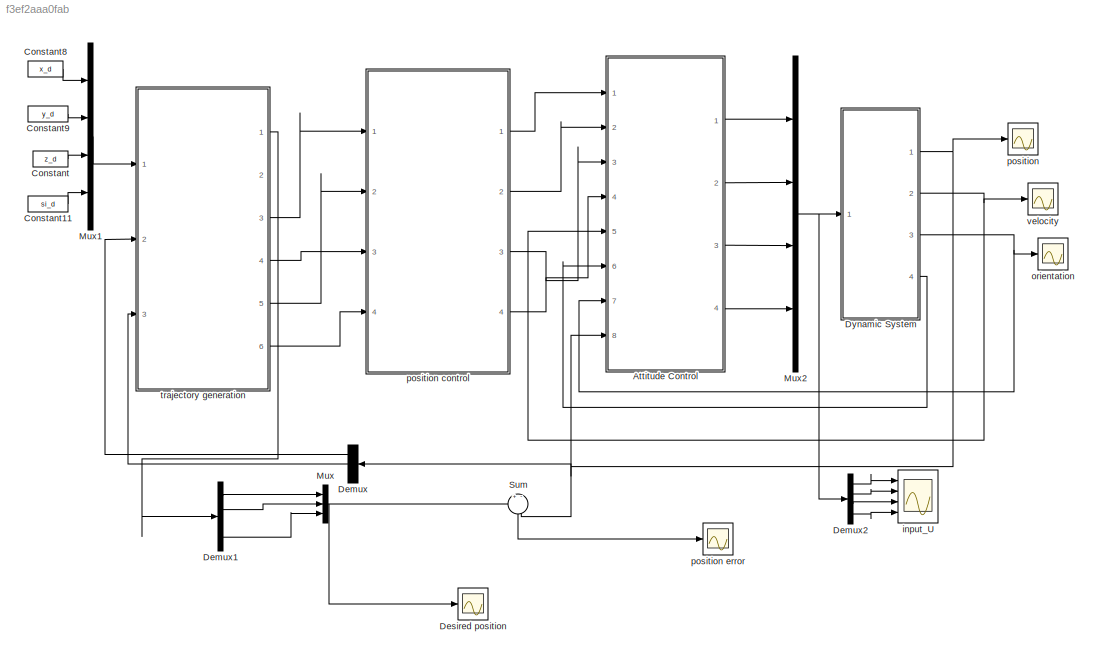
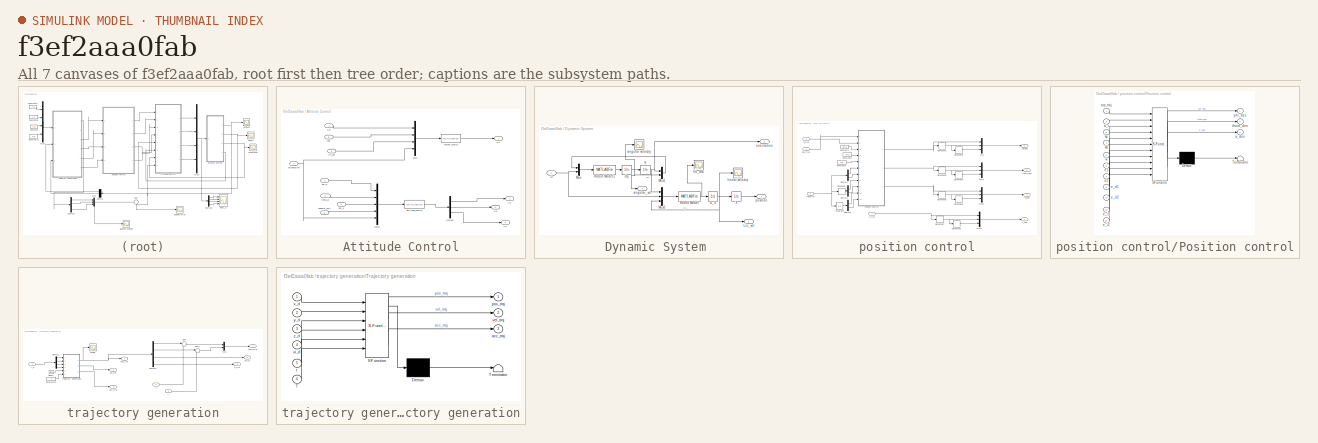
[diagram: thumbnail index - all 7 canvases of the model, root first then tree order]
MODEL slx_f3ef2aaa0fab
KIND model
CONFIG AbsTol = auto
CONFIG EnableMultiTasking = off
CONFIG FixedStep = auto
CONFIG MaxStep = auto
CONFIG MinStep = auto
CONFIG RelTol = 1e-3
CONFIG SampleTimeConstraint = Unconstrained
CONFIG SolverName = VariableStepAuto
CONFIG StartTime = 0.0
CONFIG StopTime = 50
BLOCK [SubSystem] Attitude Control
  Ports = [8, 4]
  RequestExecContextInheritance = off
BLOCK [Demux] Attitude Control/Demux
  Outputs = 3
  Ports = [1, 3]
BLOCK [Mux] Attitude Control/Mux
  DisplayOption = bar
  Ports = [4, 1]
BLOCK [Mux] Attitude Control/Mux1
  DisplayOption = bar
  Inputs = 5
  Ports = [5, 1]
BLOCK [Outport] Attitude Control/U1
  VectorParamsAs1DForOutWhenUnconnected = off
BLOCK [Outport] Attitude Control/U2
  Port = 2
  VectorParamsAs1DForOutWhenUnconnected = off
BLOCK [Outport] Attitude Control/U3
  Port = 3
  VectorParamsAs1DForOutWhenUnconnected = off
BLOCK [Outport] Attitude Control/U4
  Port = 4
  VectorParamsAs1DForOutWhenUnconnected = off
BLOCK [Inport] Attitude Control/angular_vel1
  Port = 6
BLOCK [MATLABFcn] Attitude Control/attitude_control
  MATLABFcn = attitude_ctrl_bs(u(1:3),u(4:6),u(7:9),u(10:12),u(13:15),droneparam)
  OutputDimensions = 3
  Ports = [1, 1]
BLOCK [MATLABFcn] Attitude Control/height_control
  MATLABFcn = height_input_bs(u(1:3),u(4:6),u(7:9),u(10:12),droneparam)
  OutputDimensions = 1
  Ports = [1, 1]
BLOCK [Inport] Attitude Control/lin_vel
  Port = 5
BLOCK [Inport] Attitude Control/orientation
  Port = 7
BLOCK [Inport] Attitude Control/phi_d
  Port = 2
BLOCK [Inport] Attitude Control/pos
  Port = 8
BLOCK [Inport] Attitude Control/psi_d
  Port = 4
BLOCK [Inport] Attitude Control/theta_d
  Port = 3
BLOCK [Inport] Attitude Control/z_d
BLOCK [Constant] Constant
  Value = z_d
BLOCK [Constant] Constant11
  Value = si_d
BLOCK [Constant] Constant8
  Value = x_d
BLOCK [Constant] Constant9
  Value = y_d
BLOCK [Demux] Demux
  NameLocation = top
  Outputs = 3
  Ports = [1, 3]
BLOCK [Demux] Demux1
  Ports = [1, 4]
BLOCK [Demux] Demux2
  Ports = [1, 4]
BLOCK [Scope] Desired position 
  Floating = off
  NumInputPorts = 1
  Ports = [1]
  ScopeSpecificationString = Simulink.scopes.TimeScopeBlockCfg('CurrentConfiguration', extmgr.ConfigurationSet(extmgr.Configuration('Core','General UI',true,'FigureColor',[1 1 1]),extmgr.Configuration('Core','Source UI',true),extmgr.Configuration('Sources','WiredSimulink',true,'DataLoggingVariableName','ScopeData1'),extmgr.Configuration('Visuals','Time Domain',true,'SerializedDisplays',{struct('MinYLimReal','-0.17496','MaxYLi...<+1917ch>
BLOCK [SubSystem] Dynamic System 
  Ports = [1, 4]
  RequestExecContextInheritance = off
BLOCK [Outport] Dynamic System /Lin_vel
  Port = 2
  VectorParamsAs1DForOutWhenUnconnected = off
BLOCK [Mux] Dynamic System /Mux
  DisplayOption = bar
  Inputs = 2
  Ports = [2, 1]
BLOCK [Mux] Dynamic System /Mux1
  DisplayOption = bar
  Inputs = 2
  Ports = [2, 1]
BLOCK [Mux] Dynamic System /Mux3
  DisplayOption = bar
  Inputs = 3
  Ports = [3, 1]
BLOCK [MATLABFcn] Dynamic System /Robot Model
  MATLABFcn = dronePos(u(1:3),u(4:7),u(8:10),droneparam)
  OutputDimensions = 3
  Ports = [1, 1]
BLOCK [MATLABFcn] Dynamic System /Robot Model1
  MATLABFcn = droneOrientation(u(1:3),u(4:6),u(7:10),droneparam)
  OutputDimensions = 3
  Ports = [1, 1]
BLOCK [Inport] Dynamic System /U
BLOCK [Integrator] Dynamic System /X
  InitialCondition = droneparam.X0
  NameLocation = top
  Ports = [1, 1]
BLOCK [Scope] Dynamic System /angular velocity
  Floating = off
  NumInputPorts = 1
  Ports = [1]
  ScopeSpecificationString = Simulink.scopes.TimeScopeBlockCfg('CurrentConfiguration', extmgr.ConfigurationSet(extmgr.Configuration('Core','General UI',true),extmgr.Configuration('Core','Source UI',true),extmgr.Configuration('Sources','WiredSimulink',true,'DataLoggingVariableName','ScopeData4'),extmgr.Configuration('Visuals','Time Domain',true,'SerializedDisplays',{struct('MinYLimReal','-0.96572','MaxYLimReal','0.53685','YLab...<+1402ch>
BLOCK [Outport] Dynamic System /angular_vel
  Port = 4
  VectorParamsAs1DForOutWhenUnconnected = off
BLOCK [Integrator] Dynamic System /d_X
  InitialCondition = droneparam.X0
  NameLocation = top
  Ports = [1, 1]
BLOCK [Integrator] Dynamic System /dq
  InitialCondition = droneparam.q0
  NameLocation = top
  Ports = [1, 1]
BLOCK [Scope] Dynamic System /lin_acc
  Floating = off
  NumInputPorts = 1
  Ports = [1]
  ScopeSpecificationString = Simulink.scopes.TimeScopeBlockCfg('CurrentConfiguration', extmgr.ConfigurationSet(extmgr.Configuration('Core','General UI',true,'FigureColor',[1 1 1]),extmgr.Configuration('Core','Source UI',true),extmgr.Configuration('Sources','WiredSimulink',true,'DataLoggingVariableName','ScopeData6'),extmgr.Configuration('Visuals','Time Domain',true,'SerializedDisplays',{struct('MinYLimReal','-24.18427','MaxYL...<+1882ch>
BLOCK [Scope] Dynamic System /linear velocity 
  Floating = off
  NumInputPorts = 1
  Ports = [1]
  ScopeSpecificationString = Simulink.scopes.TimeScopeBlockCfg('CurrentConfiguration', extmgr.ConfigurationSet(extmgr.Configuration('Core','General UI',true),extmgr.Configuration('Core','Source UI',true),extmgr.Configuration('Sources','WiredSimulink',true,'DataLoggingVariableName','ScopeData2'),extmgr.Configuration('Visuals','Time Domain',true,'SerializedDisplays',{struct('MinYLimReal','-0.33742','MaxYLimReal','2.92382','YLab...<+1406ch>
BLOCK [Outport] Dynamic System /orientation
  Port = 3
  VectorParamsAs1DForOutWhenUnconnected = off
BLOCK [Outport] Dynamic System /position 
  VectorParamsAs1DForOutWhenUnconnected = off
BLOCK [Integrator] Dynamic System /q
  InitialCondition = droneparam.q0
  NameLocation = top
  Ports = [1, 1]
BLOCK [Mux] Mux
  DisplayOption = bar
  Inputs = 3
  Ports = [3, 1]
BLOCK [Mux] Mux1
  DisplayOption = bar
  Ports = [4, 1]
BLOCK [Mux] Mux2
  DisplayOption = bar
  Ports = [4, 1]
BLOCK [Sum] Sum
  Inputs = +-
  NameLocation = left
  Ports = [2, 1]
BLOCK [Scope] input_U
  Floating = off
  NumInputPorts = 4
  Ports = [4]
  ScopeSpecificationString = Simulink.scopes.TimeScopeBlockCfg('CurrentConfiguration', extmgr.ConfigurationSet(extmgr.Configuration('Core','General UI',true,'FigureColor',[1 1 1]),extmgr.Configuration('Core','Source UI',true),extmgr.Configuration('Sources','WiredSimulink',true,'DataLoggingVariableName','ScopeData2'),extmgr.Configuration('Visuals','Time Domain',true,'SerializedDisplays',{struct('MinYLimReal','9.13185','MaxYLim...<+4444ch>
BLOCK [Scope] orientation
  Floating = off
  NumInputPorts = 1
  Ports = [1]
  ScopeSpecificationString = Simulink.scopes.TimeScopeBlockCfg('CurrentConfiguration', extmgr.ConfigurationSet(extmgr.Configuration('Core','General UI',true),extmgr.Configuration('Core','Source UI',true),extmgr.Configuration('Sources','WiredSimulink',true,'DataLoggingVariableName','ScopeData3'),extmgr.Configuration('Visuals','Time Domain',true,'SerializedDisplays',{struct('MinYLimReal','-0.02274','MaxYLimReal','0.02191','YLab...<+1514ch>
BLOCK [Scope] position 
  Floating = off
  NumInputPorts = 1
  Ports = [1]
  ScopeSpecificationString = Simulink.scopes.TimeScopeBlockCfg('CurrentConfiguration', extmgr.ConfigurationSet(extmgr.Configuration('Core','General UI',true,'FigureColor',[1 1 1]),extmgr.Configuration('Core','Source UI',true),extmgr.Configuration('Sources','WiredSimulink',true,'DataLoggingVariableName','ScopeData4'),extmgr.Configuration('Visuals','Time Domain',true,'SerializedDisplays',{struct('MinYLimReal','-8.13159','MaxYLi...<+1880ch>
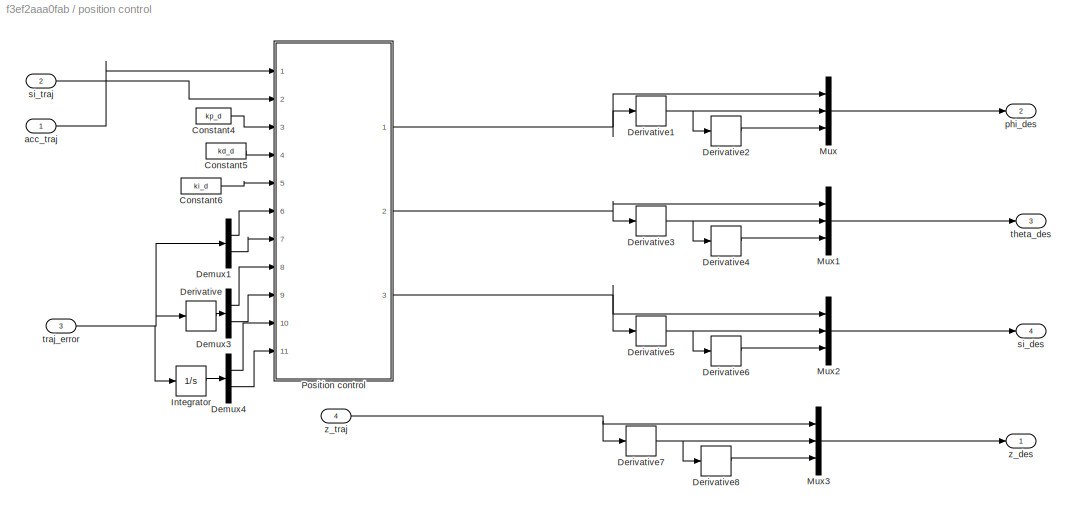
BLOCK [SubSystem] position control
  Ports = [4, 4]
  RequestExecContextInheritance = off
BLOCK [Constant] position control/Constant4
  Value = kp_d
BLOCK [Constant] position control/Constant5
  Value = kd_d
BLOCK [Constant] position control/Constant6
  Value = ki_d
BLOCK [Demux] position control/Demux1
  Outputs = 2
  Ports = [1, 2]
BLOCK [Demux] position control/Demux3
  Outputs = 2
  Ports = [1, 2]
BLOCK [Demux] position control/Demux4
  Outputs = 2
  Ports = [1, 2]
BLOCK [Derivative] position control/Derivative
BLOCK [Derivative] position control/Derivative1
BLOCK [Derivative] position control/Derivative2
BLOCK [Derivative] position control/Derivative3
BLOCK [Derivative] position control/Derivative4
BLOCK [Derivative] position control/Derivative5
BLOCK [Derivative] position control/Derivative6
BLOCK [Derivative] position control/Derivative7
BLOCK [Derivative] position control/Derivative8
BLOCK [Integrator] position control/Integrator
  Ports = [1, 1]
BLOCK [Mux] position control/Mux
  DisplayOption = bar
  Inputs = 3
  Ports = [3, 1]
BLOCK [Mux] position control/Mux1
  DisplayOption = bar
  Inputs = 3
  Ports = [3, 1]
BLOCK [Mux] position control/Mux2
  DisplayOption = bar
  Inputs = 3
  Ports = [3, 1]
BLOCK [Mux] position control/Mux3
  DisplayOption = bar
  Inputs = 3
  Ports = [3, 1]
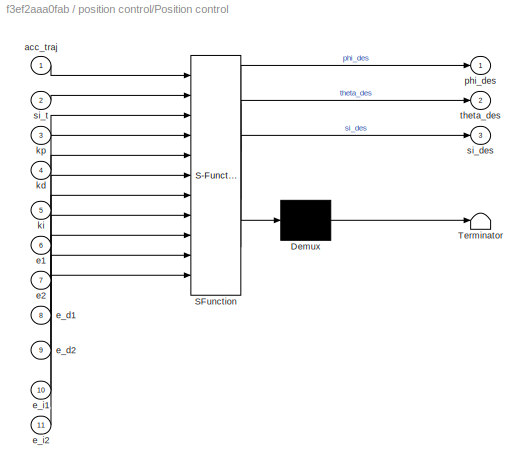
BLOCK [SubSystem] position control/Position control
  ErrorFcn = Stateflow.Translate.translate
  PermitHierarchicalResolution = ExplicitOnly
  Ports = [11, 3]
  RequestExecContextInheritance = off
  SFBlockType = MATLAB Function
  TreatAsAtomicUnit = on
BLOCK [Demux] position control/Position control/ Demux 
  Outputs = 1
  Ports = [1, 1]
BLOCK [S-Function] position control/Position control/ SFunction 
  EnableBusSupport = on
  FunctionName = sf_sfun
  PortCounts = [11 4]
  Ports = [11, 4]
  SFcnIsStateOwnerBlock = off
  SFunctionDeploymentMode = off
  Tag = Stateflow S-Function 2
BLOCK [Terminator] position control/Position control/ Terminator 
BLOCK [Inport] position control/Position control/acc_traj
BLOCK [Inport] position control/Position control/e1
  Port = 6
BLOCK [Inport] position control/Position control/e2
  Port = 7
BLOCK [Inport] position control/Position control/e_d1
  Port = 8
BLOCK [Inport] position control/Position control/e_d2
  Port = 9
BLOCK [Inport] position control/Position control/e_i1
  Port = 10
BLOCK [Inport] position control/Position control/e_i2
  Port = 11
BLOCK [Inport] position control/Position control/kd
  Port = 4
BLOCK [Inport] position control/Position control/ki
  Port = 5
BLOCK [Inport] position control/Position control/kp
  Port = 3
BLOCK [Outport] position control/Position control/phi_des
  VectorParamsAs1DForOutWhenUnconnected = off
BLOCK [Outport] position control/Position control/si_des
  Port = 3
  VectorParamsAs1DForOutWhenUnconnected = off
BLOCK [Inport] position control/Position control/si_t
  Port = 2
BLOCK [Outport] position control/Position control/theta_des
  Port = 2
  VectorParamsAs1DForOutWhenUnconnected = off
BLOCK [Inport] position control/acc_traj
BLOCK [Outport] position control/phi_des
  Port = 2
  VectorParamsAs1DForOutWhenUnconnected = off
BLOCK [Outport] position control/si_des
  Port = 4
  VectorParamsAs1DForOutWhenUnconnected = off
BLOCK [Inport] position control/si_traj
  Port = 2
BLOCK [Outport] position control/theta_des
  Port = 3
  VectorParamsAs1DForOutWhenUnconnected = off
BLOCK [Inport] position control/traj_error
  Port = 3
BLOCK [Outport] position control/z_des
  VectorParamsAs1DForOutWhenUnconnected = off
BLOCK [Inport] position control/z_traj
  Port = 4
BLOCK [Scope] position error
  Floating = off
  NumInputPorts = 1
  Ports = [1]
  ScopeSpecificationString = Simulink.scopes.TimeScopeBlockCfg('CurrentConfiguration', extmgr.ConfigurationSet(extmgr.Configuration('Core','General UI',true,'FigureColor',[1 1 1]),extmgr.Configuration('Core','Source UI',true),extmgr.Configuration('Sources','WiredSimulink',true,'DataLoggingVariableName','ScopeData5'),extmgr.Configuration('Visuals','Time Domain',true,'SerializedDisplays',{struct('MinYLimReal','-0.00314','MaxYLi...<+1915ch>
BLOCK [SubSystem] trajectory generation
  Ports = [3, 6]
  RequestExecContextInheritance = off
BLOCK [Clock] trajectory generation/Clock1
BLOCK [Constant] trajectory generation/Constant10
  Value = T
BLOCK [Demux] trajectory generation/Demux1
  Ports = [1, 4]
BLOCK [Demux] trajectory generation/Demux2
  Ports = [1, 4]
BLOCK [Mux] trajectory generation/Mux
  DisplayOption = bar
  Inputs = 2
  Ports = [2, 1]
BLOCK [Scope] trajectory generation/Scope
  Floating = off
  NumInputPorts = 1
  Ports = [1]
  ScopeSpecificationString = Simulink.scopes.TimeScopeBlockCfg('CurrentConfiguration', extmgr.ConfigurationSet(extmgr.Configuration('Core','General UI',true),extmgr.Configuration('Core','Source UI',true),extmgr.Configuration('Sources','WiredSimulink',true,'DataLoggingVariableName','ScopeData3'),extmgr.Configuration('Visuals','Time Domain',true,'SerializedDisplays',{struct('MinYLimReal','-2.5','MaxYLimReal','22.5','YLabelReal'...<+1501ch>
BLOCK [Sum] trajectory generation/Sum
  Inputs = |+-
  Ports = [2, 1]
BLOCK [Sum] trajectory generation/Sum1
  Inputs = |+-
  Ports = [2, 1]
BLOCK [SubSystem] trajectory generation/Trajectory generation
  ErrorFcn = Stateflow.Translate.translate
  PermitHierarchicalResolution = ExplicitOnly
  Ports = [6, 3]
  RequestExecContextInheritance = off
  SFBlockType = MATLAB Function
  TreatAsAtomicUnit = on
BLOCK [Demux] trajectory generation/Trajectory generation/ Demux 
  Outputs = 1
  Ports = [1, 1]
BLOCK [S-Function] trajectory generation/Trajectory generation/ SFunction 
  EnableBusSupport = on
  FunctionName = sf_sfun
  PortCounts = [6 4]
  Ports = [6, 4]
  SFcnIsStateOwnerBlock = off
  SFunctionDeploymentMode = off
  Tag = Stateflow S-Function 1
BLOCK [Terminator] trajectory generation/Trajectory generation/ Terminator 
BLOCK [Inport] trajectory generation/Trajectory generation/T
  Port = 6
BLOCK [Outport] trajectory generation/Trajectory generation/acc_traj
  Port = 3
  VectorParamsAs1DForOutWhenUnconnected = off
BLOCK [Outport] trajectory generation/Trajectory generation/pos_traj
  VectorParamsAs1DForOutWhenUnconnected = off
BLOCK [Inport] trajectory generation/Trajectory generation/si_d
  Port = 4
BLOCK [Inport] trajectory generation/Trajectory generation/t
  Port = 5
BLOCK [Outport] trajectory generation/Trajectory generation/vel_traj
  Port = 2
  VectorParamsAs1DForOutWhenUnconnected = off
BLOCK [Inport] trajectory generation/Trajectory generation/x_d
BLOCK [Inport] trajectory generation/Trajectory generation/y_d
  Port = 2
BLOCK [Inport] trajectory generation/Trajectory generation/z_d
  Port = 3
BLOCK [Outport] trajectory generation/acc_traj
  Port = 3
  VectorParamsAs1DForOutWhenUnconnected = off
BLOCK [Outport] trajectory generation/pos_error
  Port = 4
  VectorParamsAs1DForOutWhenUnconnected = off
BLOCK [Outport] trajectory generation/pos_traj
  VectorParamsAs1DForOutWhenUnconnected = off
BLOCK [Inport] trajectory generation/r_d
BLOCK [Outport] trajectory generation/si_traj
  Port = 5
  VectorParamsAs1DForOutWhenUnconnected = off
BLOCK [Outport] trajectory generation/vel_traj
  Port = 2
  VectorParamsAs1DForOutWhenUnconnected = off
BLOCK [Inport] trajectory generation/x
  Port = 2
BLOCK [Inport] trajectory generation/y
  Port = 3
BLOCK [Outport] trajectory generation/z_traj
  Port = 6
  VectorParamsAs1DForOutWhenUnconnected = off
BLOCK [Scope] velocity 
  Floating = off
  NumInputPorts = 1
  Ports = [1]
  ScopeSpecificationString = Simulink.scopes.TimeScopeBlockCfg('CurrentConfiguration', extmgr.ConfigurationSet(extmgr.Configuration('Core','General UI',true,'FigureColor',[1 1 1]),extmgr.Configuration('Core','Source UI',true),extmgr.Configuration('Sources','WiredSimulink',true,'DataLoggingVariableName','ScopeData6'),extmgr.Configuration('Visuals','Time Domain',true,'SerializedDisplays',{struct('MinYLimReal','-0.33722','MaxYLi...<+1918ch>
LINE Attitude Control/Demux:1 -> Attitude Control/U2:1
LINE Attitude Control/Demux:2 -> Attitude Control/U3:1
LINE Attitude Control/Demux:3 -> Attitude Control/U4:1
LINE Attitude Control/Mux1:1 -> Attitude Control/attitude_control:1
LINE Attitude Control/Mux:1 -> Attitude Control/height_control:1
LINE Attitude Control/angular_vel1:1 -> Attitude Control/Mux1:4
LINE Attitude Control/attitude_control:1 -> Attitude Control/Demux:1
LINE Attitude Control/height_control:1 -> Attitude Control/U1:1
LINE Attitude Control/lin_vel:1 -> Attitude Control/Mux:3
NET Attitude Control/orientation:1 -> Attitude Control/Mux1:5, Attitude Control/Mux:4
LINE Attitude Control/phi_d:1 -> Attitude Control/Mux1:1
LINE Attitude Control/pos:1 -> Attitude Control/Mux:2
LINE Attitude Control/psi_d:1 -> Attitude Control/Mux1:3
LINE Attitude Control/theta_d:1 -> Attitude Control/Mux1:2
LINE Attitude Control/z_d:1 -> Attitude Control/Mux:1
LINE Attitude Control:1 -> Mux2:1
LINE Attitude Control:2 -> Mux2:2
LINE Attitude Control:3 -> Mux2:3
LINE Attitude Control:4 -> Mux2:4
LINE Constant11:1 -> Mux1:4
LINE Constant8:1 -> Mux1:1
LINE Constant9:1 -> Mux1:2
LINE Constant:1 -> Mux1:3
LINE Demux1:1 -> Mux:1
LINE Demux1:2 -> Mux:2
LINE Demux1:4 -> Mux:3
LINE Demux2:1 -> input_U:1
LINE Demux2:2 -> input_U:2
LINE Demux2:3 -> input_U:3
LINE Demux2:4 -> input_U:4
LINE Demux:1 -> trajectory generation:2
LINE Demux:2 -> trajectory generation:3
LINE Dynamic System /Mux1:1 -> Dynamic System /Mux:1
LINE Dynamic System /Mux3:1 -> Dynamic System /Robot Model:1
LINE Dynamic System /Mux:1 -> Dynamic System /Robot Model1:1
LINE Dynamic System /Robot Model1:1 -> Dynamic System /dq:1
NET Dynamic System /Robot Model:1 -> Dynamic System /d_X:1, Dynamic System /lin_acc:1
NET Dynamic System /U:1 -> Dynamic System /Mux3:2, Dynamic System /Mux:2
LINE Dynamic System /X:1 -> Dynamic System /position :1
NET Dynamic System /d_X:1 -> Dynamic System /Lin_vel:1, Dynamic System /Mux3:3, Dynamic System /X:1, Dynamic System /linear velocity :1
NET Dynamic System /dq:1 -> Dynamic System /Mux1:2, Dynamic System /angular velocity:1, Dynamic System /angular_vel:1, Dynamic System /q:1
NET Dynamic System /q:1 -> Dynamic System /Mux1:1, Dynamic System /Mux3:1, Dynamic System /orientation:1
NET Dynamic System :1 -> Attitude Control:8, Demux:1, Sum:2, position :1
NET Dynamic System :2 -> Attitude Control:5, velocity :1
NET Dynamic System :3 -> Attitude Control:7, orientation:1
LINE Dynamic System :4 -> Attitude Control:6
LINE Mux1:1 -> trajectory generation:1
NET Mux2:1 -> Demux2:1, Dynamic System :1
NET Mux:1 -> Desired position :1, Sum:1
LINE Sum:1 -> position error:1
LINE position control/Constant4:1 -> position control/Position control:3
LINE position control/Constant5:1 -> position control/Position control:4
LINE position control/Constant6:1 -> position control/Position control:5
LINE position control/Demux1:1 -> position control/Position control:6
LINE position control/Demux1:2 -> position control/Position control:7
LINE position control/Demux3:1 -> position control/Position control:8
LINE position control/Demux3:2 -> position control/Position control:9
LINE position control/Demux4:1 -> position control/Position control:10
LINE position control/Demux4:2 -> position control/Position control:11
NET position control/Derivative1:1 -> position control/Derivative2:1, position control/Mux:2
LINE position control/Derivative2:1 -> position control/Mux:3
NET position control/Derivative3:1 -> position control/Derivative4:1, position control/Mux1:2
LINE position control/Derivative4:1 -> position control/Mux1:3
NET position control/Derivative5:1 -> position control/Derivative6:1, position control/Mux2:2
LINE position control/Derivative6:1 -> position control/Mux2:3
NET position control/Derivative7:1 -> position control/Derivative8:1, position control/Mux3:2
LINE position control/Derivative8:1 -> position control/Mux3:3
LINE position control/Derivative:1 -> position control/Demux3:1
LINE position control/Integrator:1 -> position control/Demux4:1
LINE position control/Mux1:1 -> position control/theta_des:1
LINE position control/Mux2:1 -> position control/si_des:1
LINE position control/Mux3:1 -> position control/z_des:1
LINE position control/Mux:1 -> position control/phi_des:1
NET position control/Position control:1 -> position control/Derivative1:1, position control/Mux:1
NET position control/Position control:2 -> position control/Derivative3:1, position control/Mux1:1
NET position control/Position control:3 -> position control/Derivative5:1, position control/Mux2:1
LINE position control/acc_traj:1 -> position control/Position control:1
LINE position control/si_traj:1 -> position control/Position control:2
NET position control/traj_error:1 -> position control/Demux1:1, position control/Derivative:1, position control/Integrator:1
NET position control/z_traj:1 -> position control/Derivative7:1, position control/Mux3:1
LINE position control:1 -> Attitude Control:1
LINE position control:2 -> Attitude Control:2
LINE position control:3 -> Attitude Control:3
LINE position control:4 -> Attitude Control:4
LINE trajectory generation/Clock1:1 -> trajectory generation/Trajectory generation:5
LINE trajectory generation/Constant10:1 -> trajectory generation/Trajectory generation:6
LINE trajectory generation/Demux1:1 -> trajectory generation/Trajectory generation:1
LINE trajectory generation/Demux1:2 -> trajectory generation/Trajectory generation:2
LINE trajectory generation/Demux1:3 -> trajectory generation/Trajectory generation:3
LINE trajectory generation/Demux1:4 -> trajectory generation/Trajectory generation:4
LINE trajectory generation/Demux2:1 -> trajectory generation/Sum:1
LINE trajectory generation/Demux2:2 -> trajectory generation/Sum1:1
LINE trajectory generation/Demux2:3 -> trajectory generation/si_traj:1
LINE trajectory generation/Demux2:4 -> trajectory generation/z_traj:1
LINE trajectory generation/Mux:1 -> trajectory generation/pos_error:1
LINE trajectory generation/Sum1:1 -> trajectory generation/Mux:2
LINE trajectory generation/Sum:1 -> trajectory generation/Mux:1
NET trajectory generation/Trajectory generation:1 -> trajectory generation/Demux2:1, trajectory generation/Scope:1, trajectory generation/pos_traj:1
LINE trajectory generation/Trajectory generation:2 -> trajectory generation/vel_traj:1
LINE trajectory generation/Trajectory generation:3 -> trajectory generation/acc_traj:1
LINE trajectory generation/r_d:1 -> trajectory generation/Demux1:1
LINE trajectory generation/x:1 -> trajectory generation/Sum:2
LINE trajectory generation/y:1 -> trajectory generation/Sum1:2
LINE trajectory generation:1 -> Demux1:1
LINE trajectory generation:3 -> position control:1
LINE trajectory generation:4 -> position control:3
LINE trajectory generation:5 -> position control:2
LINE trajectory generation:6 -> position control:4
note: NET lines group one-source signal fan-out (src -> all destinations, sorted); 1:1 wires keep LINE
CHART trajectory generation/Trajectory generation states=1 transitions=1
  STATE_LABEL 'eML_blk_kernel()'
  STATE_LABEL 'SCRIPT:\nfunction [pos_traj,vel_traj,acc_traj] = fcn(x_d,y_d,z_d,si_d,t,T)\n    x_traj = x_d*t^2/T^2;\n    y_traj = y_d*t^2/T^2;\n    si_traj = si_d*t^2/T^2;\n    z_traj = z_d*t^2/T^2;\n    \n    dx_traj = 2*x_d*t/T^2;\n    dy_traj = 2*y_d*t/T^2;\n    dsi_traj = 2*si_d*t/T^2;\n    dz_traj = 2*z_d*t/T^2;\n    \n    ddx_traj = 2*x_d/T^2;\n    ddy_traj = 2*y_d/T^2;\n    ddsi_traj = 2*si_d/T^2;\n    ddz_traj = 2*z_d...<+437ch>'
CHART position control/Position control states=1 transitions=1
  STATE_LABEL 'eML_blk_kernel()'
  STATE_LABEL 'SCRIPT:\nfunction [phi_des,theta_des,si_des] = fcn(acc_traj, si_t,kp,kd,ki,e1,e2,e_d1,e_d2,e_i1,e_i2)\n        e = [e1 e2];\n        e_d = [e_d1 e_d2];\n        e_i = [e_i1 e_i2];\n   \n    axstar = acc_traj(1);\n    aystar = acc_traj(2);\n    \n    ddr_des = [axstar aystar] + kp*e;\n    \n    phi_des = (ddr_des(1)*sin(si_t) - ddr_des(2)*cos(si_t))/9.8;\n    \n    theta_des = (ddr_des(1)*cos(si_t) + ddr_des(2)...<+45ch>'
CHART  states=0 transitions=0
CHART  states=0 transitions=0
